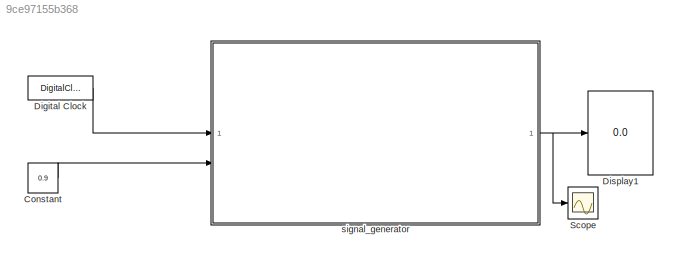
MODEL slx_9ce97155b368
KIND model
CONFIG AbsTol = auto
CONFIG EnableMultiTasking = off
CONFIG FixedStep = 1e-7
CONFIG MaxStep = auto
CONFIG MinStep = auto
CONFIG RelTol = 1e-3
CONFIG SampleTimeConstraint = Unconstrained
CONFIG SolverName = FixedStepAuto
CONFIG StartTime = 0.0
CONFIG StopTime = 0.2
BLOCK [Constant] Constant
  Value = 0.9
BLOCK [DigitalClock] Digital Clock
  SampleTime = 1e-7
BLOCK [Display] Display1
  Decimation = 1
BLOCK [Scope] Scope
  ActiveDisplayYMaximum = 53.111988858956792
  ActiveDisplayYMinimum = -24.748928156893
  Floating = off
  GraphicalSettings = {"AxesScalingProperties":{"AlignXAxis":"Center","AlignYAxis":"Center","AutoScaleXAxisLimits":false,"AxesScaling":"Manual","AxesScalingNumUpdates":10,"ExpandOnly":true,"ScaleAxesLimitsAtStop":false,"XAxisDataRange":100,"YAxisDataRange":80},"DisplayProperties":{"ColorOrder":["auto","auto","auto","auto","auto","auto","auto","auto","auto","auto","auto","auto","auto","auto","auto","auto","auto","auto",...<+2359ch>
  MultipleDisplayCache = [{"MaxYLimMag":1.125,"MaxYLimReal":53.111988858956792,"MinYLimMag":0,"MinYLimReal":-24.748928156893,"PlotAsMagnitudePhase":false,"ShowGrid":true,"ShowLegend":false,"Title":"%<SignalLabel>","YLabel":""}]
  NumInputPorts = 1
  ScopeFrameLocation = window
  WasSavedAsWebScope = on
  WindowPosition = [1378.000000,50.000000,1374.000000,1073.000000,]
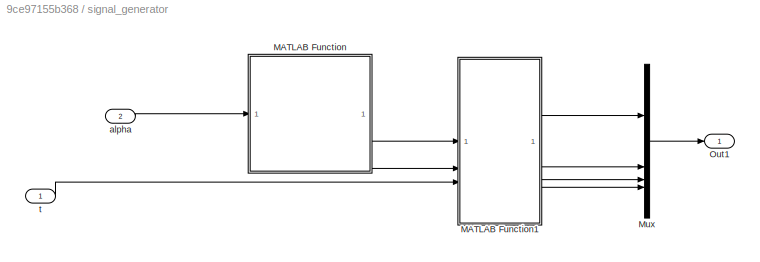
BLOCK [SubSystem] signal_generator
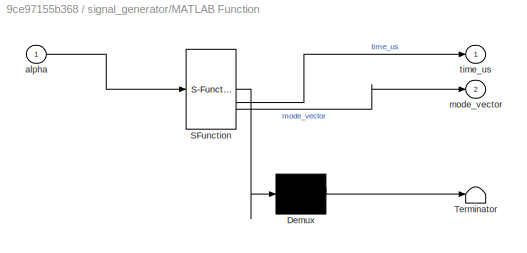
BLOCK [SubSystem] signal_generator/MATLAB Function
  ErrorFcn = Stateflow.Translate.translate
  PermitHierarchicalResolution = ExplicitOnly
  SFBlockType = MATLAB Function
  TreatAsAtomicUnit = on
BLOCK [Demux] signal_generator/MATLAB Function/ Demux 
  Outputs = 1
BLOCK [S-Function] signal_generator/MATLAB Function/ SFunction 
  EnableBusSupport = off
  FunctionName = sf_sfun
  PortCounts = [1 3]
  SFcnIsStateOwnerBlock = off
  SFunctionDeploymentMode = off
  Tag = Stateflow S-Function 2
BLOCK [Terminator] signal_generator/MATLAB Function/ Terminator 
BLOCK [Inport] signal_generator/MATLAB Function/alpha
BLOCK [Outport] signal_generator/MATLAB Function/mode_vector
  Port = 2
BLOCK [Outport] signal_generator/MATLAB Function/time_us
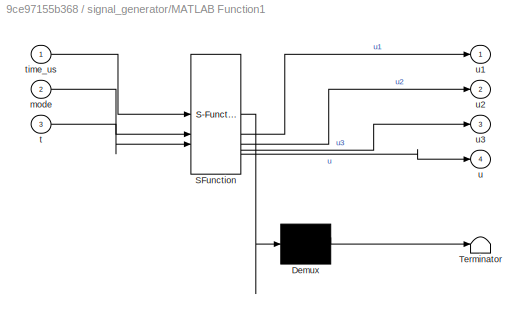
BLOCK [SubSystem] signal_generator/MATLAB Function1
  ErrorFcn = Stateflow.Translate.translate
  PermitHierarchicalResolution = ExplicitOnly
  SFBlockType = MATLAB Function
  TreatAsAtomicUnit = on
BLOCK [Demux] signal_generator/MATLAB Function1/ Demux 
  Outputs = 1
BLOCK [S-Function] signal_generator/MATLAB Function1/ SFunction 
  EnableBusSupport = off
  FunctionName = sf_sfun
  PortCounts = [3 5]
  SFcnIsStateOwnerBlock = off
  SFunctionDeploymentMode = off
  Tag = Stateflow S-Function 1
BLOCK [Terminator] signal_generator/MATLAB Function1/ Terminator 
BLOCK [Inport] signal_generator/MATLAB Function1/mode
  Port = 2
BLOCK [Inport] signal_generator/MATLAB Function1/t
  Port = 3
BLOCK [Inport] signal_generator/MATLAB Function1/time_us
BLOCK [Outport] signal_generator/MATLAB Function1/u
  Port = 4
BLOCK [Outport] signal_generator/MATLAB Function1/u1
BLOCK [Outport] signal_generator/MATLAB Function1/u2
  Port = 2
BLOCK [Outport] signal_generator/MATLAB Function1/u3
  Port = 3
BLOCK [Mux] signal_generator/Mux
  DisplayOption = bar
BLOCK [Outport] signal_generator/Out1
BLOCK [Inport] signal_generator/alpha
  Port = 2
BLOCK [Inport] signal_generator/t
LINE Constant:1 -> signal_generator:2
LINE Digital Clock:1 -> signal_generator:1
LINE signal_generator/MATLAB Function1:1 -> signal_generator/Mux:1
LINE signal_generator/MATLAB Function1:2 -> signal_generator/Mux:2
LINE signal_generator/MATLAB Function1:3 -> signal_generator/Mux:3
LINE signal_generator/MATLAB Function1:4 -> signal_generator/Mux:4
LINE signal_generator/MATLAB Function:1 -> signal_generator/MATLAB Function1:1
LINE signal_generator/MATLAB Function:2 -> signal_generator/MATLAB Function1:2
LINE signal_generator/Mux:1 -> signal_generator/Out1:1
LINE signal_generator/alpha:1 -> signal_generator/MATLAB Function:1
LINE signal_generator/t:1 -> signal_generator/MATLAB Function1:3
NET signal_generator:1 -> Display1:1, Scope:1
note: NET lines group one-source signal fan-out (src -> all destinations, sorted); 1:1 wires keep LINE
CHART signal_generator/MATLAB Function1 states=1 transitions=1
  STATE_LABEL 'eML_blk_kernel()'
  STATE_LABEL 'SCRIPT:\nfunction [u1, u2, u3, u] = generate_signal(time_us, mode, t)\n\n    [u1, u2, u3, u] = signal_generate(time_us, mode, t);\n\n\n\n'
CHART signal_generator/MATLAB Function states=1 transitions=1
  STATE_LABEL 'eML_blk_kernel()'
  STATE_LABEL 'SCRIPT:\nfunction [time_us, mode_vector] = fcn(alpha)\n    [time_us, mode_vector] = signal_create(alpha);\n'
CHART  states=0 transitions=0
CHART  states=0 transitions=0
